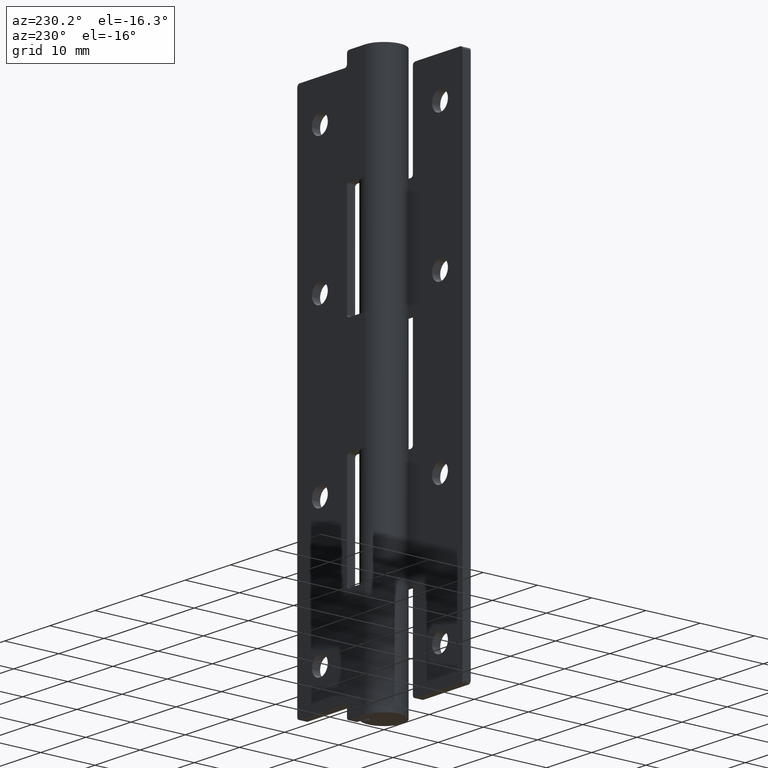
[diagram: clean part render]
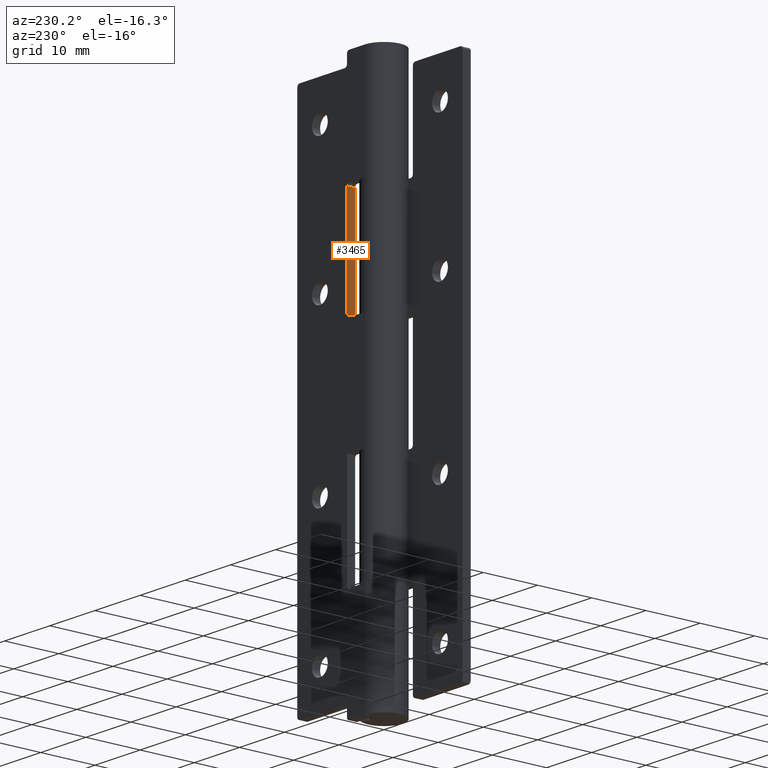
[diagram: same view with one face highlighted and labeled with its STEP entity id]
A machine part, auxiliary view. The second image highlights one B-rep face of the part: STEP entity #3465.
In plain terms, the highlighted face is a freeform B-spline surface patch.
Its self-contained STEP definition (entity closure, byte-faithful):
#3110=CARTESIAN_POINT('',(4.0,2.0,79.0));
#3111=VERTEX_POINT('',#3110);
#3132=CARTESIAN_POINT('',(4.0,3.500000000000000,79.0));
#3133=VERTEX_POINT('',#3132);
#3147=CARTESIAN_POINT('',(4.0,2.0,79.0));
#3148=CARTESIAN_POINT('',(4.0,3.500000000000000,79.0));
#3149=QUASI_UNIFORM_CURVE('',1,(#3147,#3148),.UNSPECIFIED.,.F.,.U.);
#3150=EDGE_CURVE('',#3111,#3133,#3149,.T.);
#3169=CARTESIAN_POINT('',(4.0,2.0,60.0));
#3170=VERTEX_POINT('',#3169);
#3186=CARTESIAN_POINT('',(4.0,3.500000000000000,60.0));
#3187=VERTEX_POINT('',#3186);
#3188=CARTESIAN_POINT('',(4.0,3.500000000000000,60.0));
#3189=CARTESIAN_POINT('',(4.0,2.0,60.0));
#3190=QUASI_UNIFORM_CURVE('',1,(#3188,#3189),.UNSPECIFIED.,.F.,.U.);
#3191=EDGE_CURVE('',#3187,#3170,#3190,.T.);
#3446=CARTESIAN_POINT('',(4.0,1.925075002907291,79.949049963174332));
#3447=CARTESIAN_POINT('',(4.0,1.925075002907291,59.050949527205972));
#3448=CARTESIAN_POINT('',(4.0,3.574925037325845,79.949049963174332));
#3449=CARTESIAN_POINT('',(4.0,3.574925037325845,59.050949527205972));
#3450=B_SPLINE_SURFACE_WITH_KNOTS('',1,1,((#3446,#3448),(#3447,#3449)),.UNSPECIFIED.,.F.,.F.,.U.,(2,2),(2,2),(0.0,20.898100435968370),(0.041708334948495,0.958291687403247),.UNSPECIFIED.);
#3451=CARTESIAN_POINT('',(4.0,3.500000000000000,79.0));
#3452=CARTESIAN_POINT('',(4.0,3.500000000000000,60.0));
#3453=QUASI_UNIFORM_CURVE('',1,(#3451,#3452),.UNSPECIFIED.,.F.,.U.);
#3454=EDGE_CURVE('',#3133,#3187,#3453,.T.);
#3455=ORIENTED_EDGE('',*,*,#3454,.T.);
#3456=ORIENTED_EDGE('',*,*,#3191,.T.);
#3457=CARTESIAN_POINT('',(4.0,2.0,60.0));
#3458=CARTESIAN_POINT('',(4.0,2.0,79.0));
#3459=QUASI_UNIFORM_CURVE('',1,(#3457,#3458),.UNSPECIFIED.,.F.,.U.);
#3460=EDGE_CURVE('',#3170,#3111,#3459,.T.);
#3461=ORIENTED_EDGE('',*,*,#3460,.T.);
#3462=ORIENTED_EDGE('',*,*,#3150,.T.);
#3463=EDGE_LOOP('',(#3455,#3456,#3461,#3462));
#3464=FACE_OUTER_BOUND('',#3463,.T.);
#3465=ADVANCED_FACE('',(#3464),#3450,.F.);